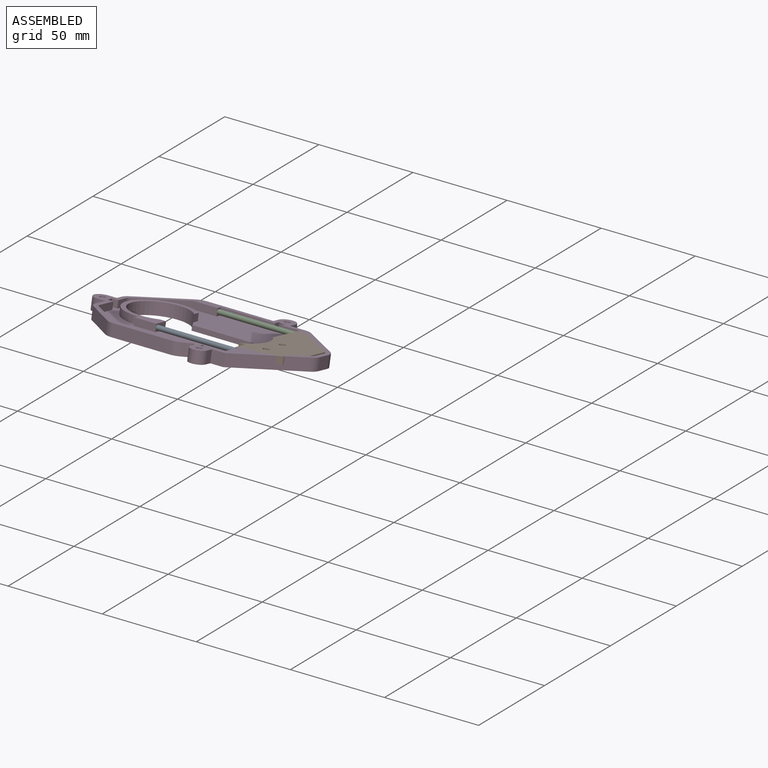
[diagram: assembled view]
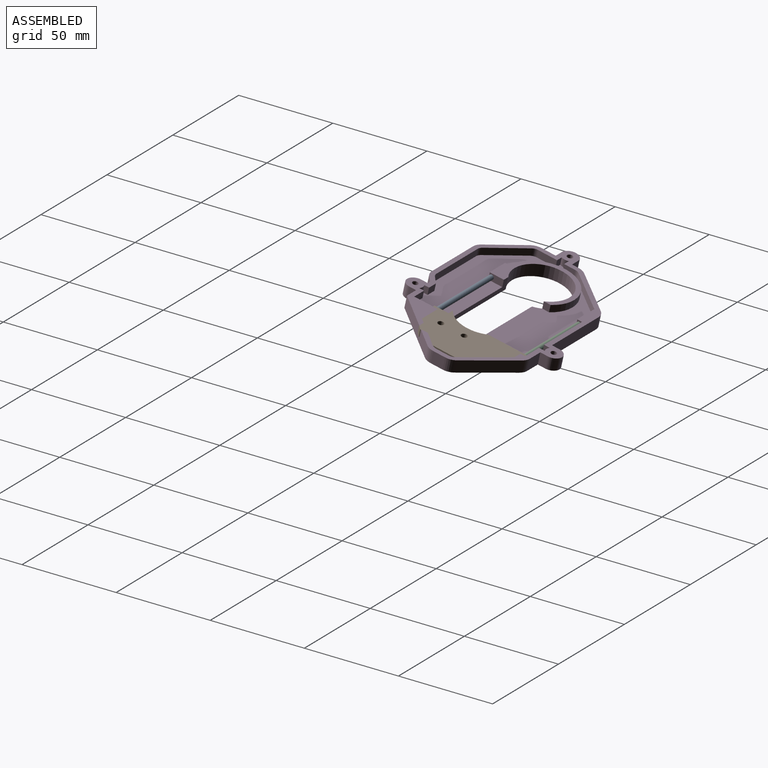
[diagram: assembled view, second angle]
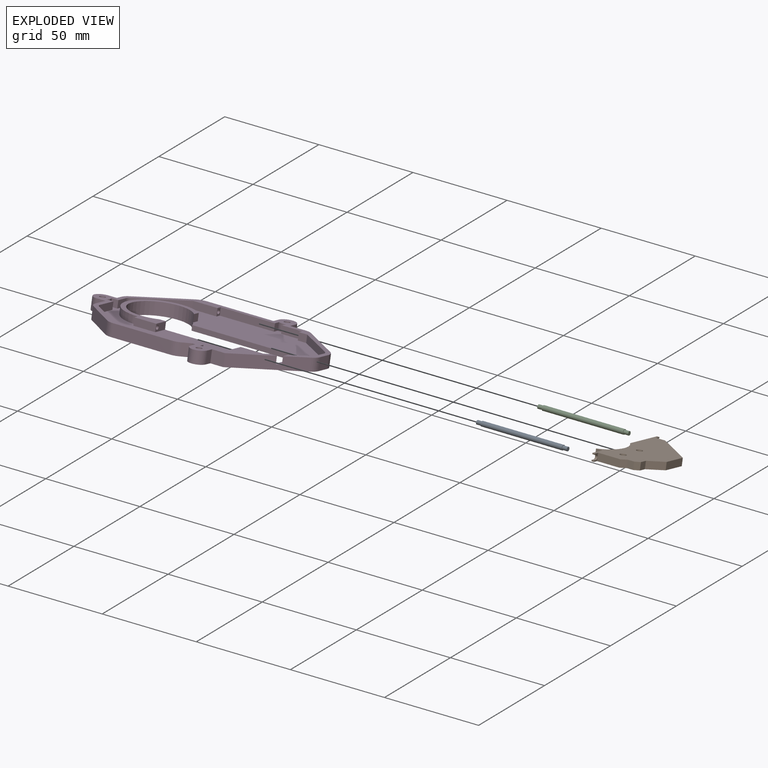
[diagram: exploded view]
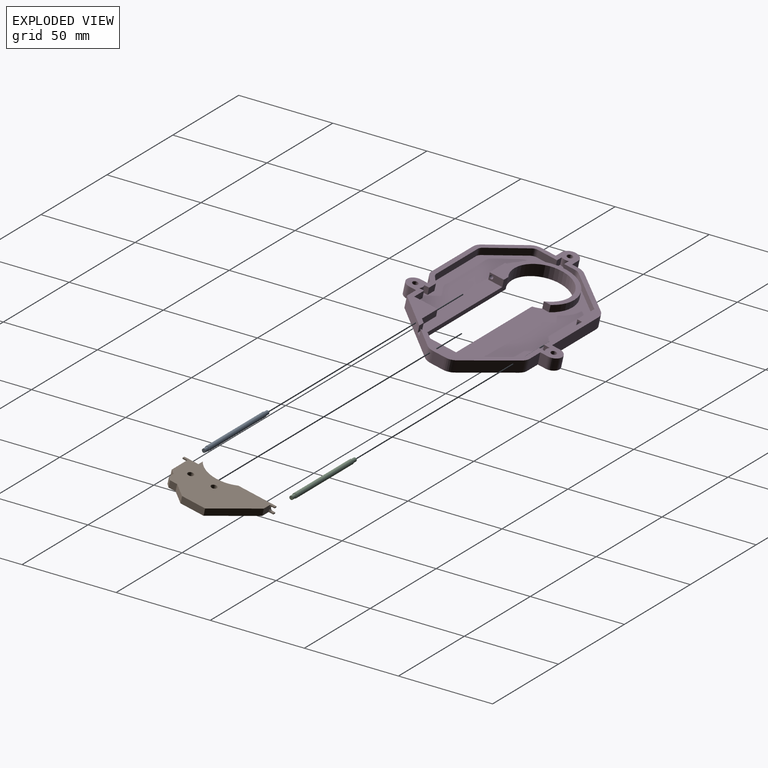
[diagram: exploded view, second angle]
ASSEMBLY  parts=4 mates=9
PART A: 7 faces, bbox 2.5x2.5x48.3 mm
  f0: cylinder r=1.02mm len=2.54mm, axis (0,0,-1), area 16.2mm2, adj f1,f4
  f1: plane 2.03x2.03mm, normal (0,0,-1), area 3.2mm2, adj f0
  f2: cylinder r=1.27mm len=43.18mm, axis (0,0,-1), area 344.6mm2, adj f3,f4
  f3: plane 2.54x2.54mm, normal (0,0,1), area 1.8mm2, adj f2,f5
  f4: plane 2.54x2.54mm, normal (0,0,-1), area 1.8mm2, adj f0,f2
  f5: cylinder r=1.02mm len=2.54mm, axis (0,0,-1), area 16.2mm2, adj f3,f6
  f6: plane 2.03x2.03mm, normal (0,0,1), area 3.2mm2, adj f5
PART B: 31 faces, bbox 3.8x30.4x50.1 mm
  f0: plane 1.27x0.64mm, normal (0,0,1), area 0.8mm2, adj f3,f7,f18,f26
  f1: plane 1.27x0.64mm, normal (0,0,-1), area 0.8mm2, adj f2,f4,f17,f25
  f2: plane 7.62x3.81mm, normal (0,-1,0), area 23.3mm2, adj f1,f9,f17,f18,f22,f23,f24,f25
  f3: plane 2.54x1.91mm, normal (0,1,0), area 2mm2, adj f0,f5,f18,f26,f28
  f4: plane 2.54x1.91mm, normal (0,1,0), area 2mm2, adj f1,f10,f17,f24,f25
  f5: plane 4.84x3.81mm, normal (0,0,1), area 18.4mm2, adj f3,f6,f17,f18,f19
  f6: plane 20.93x16.94mm, normal (0,0.63,0.78), area 102.6mm2, adj f5,f16,f17,f18
  f7: plane 20.77x3.81mm, normal (0,-1,0), area 73.4mm2, adj f0,f8,f17,f18,f20,f26,f27,f28
  f8: cylinder r=14.92mm len=21.74mm, axis (-1,0,0), area 94.2mm2, adj f7,f9,f17,f18
  f9: plane 3.81x3.33mm, normal (0,0,-1), area 12.7mm2, adj f2,f8,f17,f18
  f10: plane 11.87x3.81mm, normal (0,0,-1), area 45.2mm2, adj f4,f11,f17,f18,f21
  f11: plane 3.81x2.54mm, normal (0,0.75,-0.66), area 12.8mm2, adj f10,f12,f17,f18
  f12: plane 3.81x3.37mm, normal (0,0,-1), area 12.8mm2, adj f11,f13,f17,f18
  f13: plane 3.81x2.15mm, normal (0,0.69,-0.72), area 11.4mm2, adj f12,f14,f17,f18
  f14: plane 3.87x3.81mm, normal (0,1,0), area 14.8mm2, adj f13,f15,f17,f18
  f15: plane 7.11x6.18mm, normal (0,0.75,-0.66), area 35.9mm2, adj f14,f16,f17,f18
  f16: plane 12.52x3.81mm, normal (0,1,0), area 47.7mm2, adj f6,f15,f17,f18
  f17: plane 50.13x30.37mm, normal (1,0,0), area 900.8mm2, adj f1,f2,f4,f5,f6,f7,f8,f9
  f18: plane 50.13x30.37mm, normal (-1,0,0), area 900.8mm2, adj f0,f2,f3,f5,f6,f7,f8,f9
  f19: plane 2.54x1.91mm, normal (0,1,0), area 2mm2, adj f5,f17,f20,f27,f28
  f20: plane 1.27x0.64mm, normal (0,0,1), area 0.8mm2, adj f7,f17,f19,f27
  f21: plane 2.54x1.91mm, normal (0,1,0), area 2mm2, adj f10,f18,f22,f23,f24
  f22: plane 1.27x0.64mm, normal (0,0,-1), area 0.8mm2, adj f2,f18,f21,f23
  f23: plane 1.27x1.27mm, normal (1,0,0), area 1.6mm2, adj f2,f21,f22,f24
  f24: cylinder r=1.27mm len=2.54mm, axis (0,1,0), area 5.1mm2, adj f2,f4,f21,f23,f25
  f25: plane 1.27x1.27mm, normal (-1,0,0), area 1.6mm2, adj f1,f2,f4,f24
  f26: plane 1.27x1.27mm, normal (1,0,0), area 1.6mm2, adj f0,f3,f7,f28
  f27: plane 1.27x1.27mm, normal (-1,0,0), area 1.6mm2, adj f7,f19,f20,f28
  f28: cylinder r=1.27mm len=2.54mm, axis (0,1,0), area 5.1mm2, adj f3,f7,f19,f26,f27
  f29: cylinder r=1.59mm len=3.81mm, axis (-1,0,0), area 38mm2, adj f17,f18
  f30: cylinder r=1.59mm len=3.81mm, axis (-1,0,0), area 38mm2, adj f17,f18
PART C: same geometry as A
PART D: 91 faces, bbox 116.2x81.9x6.4 mm
  f0: plane 105.62x67.87mm, normal (0,0,1), area 3282mm2, adj f1,f2,f3,f5,f6,f7,f14,f41
  f1: cylinder r=17.46mm len=34.93mm, axis (0,0,-1), area 257.5mm2, adj f0,f4,f79,f82
  f2: plane 21.64x18.23mm, normal (0.76,-0.64,0), area 107.8mm2, adj f0,f8,f57,f78
  f3: plane 3.81x2.55mm, normal (-0.75,0.66,0), area 12.8mm2, adj f0,f8,f72,f76
  f4: plane 37.48x29.1mm, normal (0,0,1), area 236.6mm2, adj f1,f7,f41,f79,f80,f81,f82
  f5: plane 57.6x2.54mm, normal (0,-1,0), area 146.3mm2, adj f0,f6,f41,f43
  f6: plane 17.78x2.54mm, normal (-1,0,0), area 45.2mm2, adj f0,f5,f7,f43
  f7: plane 63.21x6.35mm, normal (0,1,0), area 173.2mm2, adj f0,f4,f6,f41,f43,f80
  f8: plane 116.17x81.92mm, normal (0,0,1), area 975.3mm2, adj f2,f3,f9,f10,f11,f12,f13,f14
  f9: plane 6.35x1.74mm, normal (0,-1,0), area 11.1mm2, adj f8,f10,f40,f43
  f10: plane 6.35x3.56mm, normal (-1,0,0), area 22.6mm2, adj f8,f9,f11,f43
  f11: cylinder r=4.45mm len=8.89mm, axis (0,0,-1), area 88.7mm2, adj f8,f10,f12,f43
  f12: plane 6.35x3.56mm, normal (1,0,0), area 22.6mm2, adj f8,f11,f13,f43
  f13: plane 6.88x6.35mm, normal (0,-1,0), area 43.7mm2, adj f8,f12,f14,f43
  f14: plane 29.69x25.81mm, normal (0.75,-0.66,0), area 239.4mm2, adj f0,f8,f13,f15,f43,f71,f72
  f15: cylinder r=6.35mm len=6.35mm, axis (0,0,-1), area 28.9mm2, adj f8,f14,f16,f43
  f16: plane 6.51x6.35mm, normal (1,0,0), area 41.3mm2, adj f8,f15,f17,f43
  f17: cylinder r=6.35mm len=6.35mm, axis (0,0,-1), area 35.9mm2, adj f8,f16,f18,f43
  f18: plane 23.03x18.63mm, normal (0.63,0.78,0), area 188.1mm2, adj f8,f17,f19,f43
  f19: cylinder r=6.35mm len=6.35mm, axis (0,0,-1), area 27.4mm2, adj f8,f18,f20,f43
  f20: plane 8.05x6.35mm, normal (0,1,0), area 51.1mm2, adj f8,f19,f21,f43
  f21: plane 6.35x4.12mm, normal (1,0,0), area 26.2mm2, adj f8,f20,f22,f43
  f22: cylinder r=4.45mm len=8.89mm, axis (0,0,-1), area 88.7mm2, adj f8,f21,f23,f43
  f23: plane 6.35x4.12mm, normal (-1,0,0), area 26.2mm2, adj f8,f22,f24,f43
  f24: plane 35.25x6.35mm, normal (0,1,0), area 223.9mm2, adj f8,f23,f25,f43
  f25: cylinder r=6.35mm len=6.35mm, axis (0,0,-1), area 35.1mm2, adj f8,f24,f26,f43
  f26: plane 22.83x19.23mm, normal (-0.76,0.64,0), area 189.5mm2, adj f8,f25,f27,f43
  f27: cylinder r=6.35mm len=6.35mm, axis (0,0,-1), area 28.2mm2, adj f8,f26,f28,f43
  f28: plane 6.35x3.53mm, normal (-1,0,0), area 22.4mm2, adj f8,f27,f29,f43
  f29: plane 6.35x4.57mm, normal (0,1,0), area 29mm2, adj f8,f28,f30,f43
  f30: cylinder r=4.45mm len=8.89mm, axis (0,0,-1), area 88.7mm2, adj f8,f29,f31,f43
  f31: plane 6.35x4.57mm, normal (0,-1,0), area 29mm2, adj f8,f30,f32,f43
  f32: plane 7.62x6.35mm, normal (-1,0,0), area 48.4mm2, adj f8,f31,f33,f43
  f33: cylinder r=6.35mm len=6.35mm, axis (0,0,-1), area 35.2mm2, adj f8,f32,f34,f43
  f34: plane 16.99x14.28mm, normal (-0.64,-0.77,0), area 140.9mm2, adj f8,f33,f35,f43
  f35: cylinder r=6.35mm len=6.35mm, axis (0,0,-1), area 28.2mm2, adj f8,f34,f36,f43
  f36: plane 31.28x6.35mm, normal (0,-1,0), area 198.6mm2, adj f8,f35,f37,f43
  f37: cylinder r=6.35mm len=6.35mm, axis (0,0,-1), area 28.3mm2, adj f8,f36,f40,f43
  f38: cylinder r=1.5mm len=6.35mm, axis (0,0,-1), area 59.8mm2, adj f8,f43
  f39: cylinder r=1.5mm len=6.35mm, axis (0,0,-1), area 59.8mm2, adj f8,f43
  f40: plane 6.35x3.54mm, normal (0.65,-0.76,0), area 29.5mm2, adj f8,f9,f37,f43
  f41: cylinder r=14.92mm len=29.85mm, axis (0,0,-1), area 450mm2, adj f0,f4,f5,f7,f43,f82
  f42: cylinder r=1.5mm len=6.35mm, axis (0,0,-1), area 59.8mm2, adj f8,f43
  f43: plane 116.17x81.92mm, normal (0,0,-1), area 4494mm2, adj f5,f6,f7,f9,f10,f11,f12,f13
  f44: plane 5.21x3.81mm, normal (0,1,0), area 19.9mm2, adj f0,f8,f45,f69
  f45: plane 3.81x2.54mm, normal (1,0,0), area 9.7mm2, adj f0,f8,f44,f67
  f46: plane 3.81x2.54mm, normal (-1,0,0), area 9.7mm2, adj f0,f8,f47,f67
  f47: plane 7.42x3.81mm, normal (0,1,0), area 28.3mm2, adj f0,f8,f46,f75
  f48: plane 7.66x6.66mm, normal (-0.75,0.66,0), area 38.7mm2, adj f0,f8,f49,f71
  f49: cylinder r=3.81mm len=3.81mm, axis (0,0,-1), area 10.4mm2, adj f0,f8,f48,f50
  f50: plane 6.51x3.81mm, normal (-1,0,0), area 24.8mm2, adj f0,f8,f49,f51
  f51: cylinder r=3.81mm len=3.81mm, axis (0,0,-1), area 12.9mm2, adj f0,f8,f50,f52
  f52: plane 20.93x16.94mm, normal (-0.63,-0.78,0), area 102.6mm2, adj f0,f8,f51,f74
  f53: plane 10.59x3.81mm, normal (0,-1,0), area 40.3mm2, adj f0,f8,f54,f73
  f54: plane 3.81x3.1mm, normal (-1,0,0), area 11.8mm2, adj f0,f8,f53,f68
  f55: plane 3.81x3.1mm, normal (1,0,0), area 11.8mm2, adj f0,f8,f56,f68
  f56: plane 28.78x3.81mm, normal (0,-1,0), area 109.7mm2, adj f0,f8,f55,f77
  f57: cylinder r=3.81mm len=3.81mm, axis (0,0,-1), area 10.2mm2, adj f0,f2,f8,f58
  f58: plane 6.07x3.81mm, normal (1,0,0), area 23.1mm2, adj f0,f8,f57,f59
  f59: plane 3.81x3.55mm, normal (0,-1,0), area 13.5mm2, adj f0,f8,f58,f70
  f60: plane 3.81x3.55mm, normal (0,1,0), area 13.5mm2, adj f0,f8,f61,f70
  f61: plane 10.16x3.81mm, normal (1,0,0), area 38.7mm2, adj f0,f8,f60,f62
  f62: cylinder r=3.81mm len=3.81mm, axis (0,0,-1), area 12.7mm2, adj f0,f8,f61,f63
  f63: plane 16.99x14.28mm, normal (0.64,0.77,0), area 84.6mm2, adj f0,f8,f62,f64
  f64: cylinder r=3.81mm len=3.81mm, axis (0,0,-1), area 10.1mm2, adj f0,f8,f63,f65
  f65: plane 31.28x3.81mm, normal (0,1,0), area 119.2mm2, adj f0,f8,f64,f66
  f66: cylinder r=3.81mm len=3.81mm, axis (0,0,-1), area 10.2mm2, adj f0,f8,f65,f69
  f67: cylinder r=4.04mm len=3.81mm, axis (0,0,-1), area 15.1mm2, adj f0,f8,f45,f46
  f68: cylinder r=4.04mm len=3.81mm, axis (0,0,-1), area 15.1mm2, adj f0,f8,f54,f55
  f69: plane 4.25x3.81mm, normal (-0.65,0.76,0), area 21.2mm2, adj f0,f8,f44,f66
  f70: cylinder r=4.04mm len=3.81mm, axis (0,0,-1), area 15.1mm2, adj f0,f8,f59,f60
  f71: plane 3.87x3.81mm, normal (-1,0,0), area 14.8mm2, adj f0,f8,f14,f48
  f72: plane 3.81x3.37mm, normal (0,1,0), area 12.8mm2, adj f0,f3,f8,f14
  f73: plane 3.81x2.54mm, normal (-1,0,0), area 6.4mm2, adj f0,f8,f53,f74,f89
  f74: plane 4.49x3.81mm, normal (0,-1,0), area 17.1mm2, adj f0,f8,f52,f73
  f75: plane 12.68x3.81mm, normal (-1,0,0), area 45.1mm2, adj f0,f8,f47,f76,f85
  f76: plane 11.87x3.81mm, normal (0,1,0), area 45.2mm2, adj f0,f3,f8,f75
  f77: plane 3.81x2.54mm, normal (1,0,0), area 6.4mm2, adj f0,f8,f56,f78,f87
  f78: plane 12.93x3.81mm, normal (0,-1,0), area 49.2mm2, adj f0,f2,f8,f77
  f79: plane 3.81x2.55mm, normal (-1,0,0), area 9.7mm2, adj f0,f1,f4,f81
  f80: plane 7.62x3.81mm, normal (1,0,0), area 25.8mm2, adj f0,f4,f7,f81,f83
  f81: plane 11.63x3.81mm, normal (0,-1,0), area 44.3mm2, adj f0,f4,f79,f80
  f82: plane 3.81x3.68mm, normal (1,0,0), area 14mm2, adj f0,f1,f4,f41
  f83: cylinder r=1.02mm len=2.54mm, axis (1,0,0), area 16.2mm2, adj f80,f84
  f84: plane 2.03x2.03mm, normal (1,0,0), area 3.2mm2, adj f83
  f85: cylinder r=1.02mm len=2.54mm, axis (-1,0,0), area 16.2mm2, adj f75,f86
  f86: plane 2.03x2.03mm, normal (-1,0,0), area 3.2mm2, adj f85
  f87: cylinder r=1.02mm len=2.54mm, axis (1,0,0), area 16.2mm2, adj f77,f88
  f88: plane 2.03x2.03mm, normal (1,0,0), area 3.2mm2, adj f87
  f89: cylinder r=1.02mm len=2.54mm, axis (-1,0,0), area 16.2mm2, adj f73,f90
  f90: plane 2.03x2.03mm, normal (-1,0,0), area 3.2mm2, adj f89
PLACE A rot(axis=(-0.71,0,0.71),180deg) t=(20.06,35.21,93.48)mm
PLACE B rot(axis=(-0.61,-0.61,-0.49),127.4deg) t=(20.6,43.81,114.72)mm
PLACE C rot(axis=(-0.61,-0.49,0.61),127.4deg) t=(20.06,98.27,118.91)mm
PLACE D rot(axis=(-1,0,0),12.4deg) t=(-13.45,37.95,113.41)mm
MATE cylindrical A.f0 <-> D.f83  axis (1,0,0) through (17.52,21.35,121.6)mm
MATE cylindrical A.f0 <-> D.f83  axis (-1,0,0) through (-25.66,21.35,121.6)mm
MATE planar C.f0 <-> D.f73  axis (1,0,0) through (17.52,67.84,111.4)mm
MATE cylindrical B.f24 <-> A.f0  axis (1,0,0) through (16.93,21.35,121.6)mm
MATE cylindrical B.f28 <-> C.f0  axis (1,0,0) through (16.29,67.84,111.4)mm
MATE slider B.f28 <-> C.f0  axis (1,0,0) through (16.93,67.84,111.4)mm
MATE cylindrical C.f0 <-> D.f87  axis (1,0,0) through (-25.66,67.84,111.4)mm
MATE planar D.f75 <-> A.f0  axis (-1,0,0) through (17.52,16.05,122.76)mm
MATE cylindrical C.f0 <-> D.f87  axis (1,0,0) through (17.52,67.84,111.4)mm
